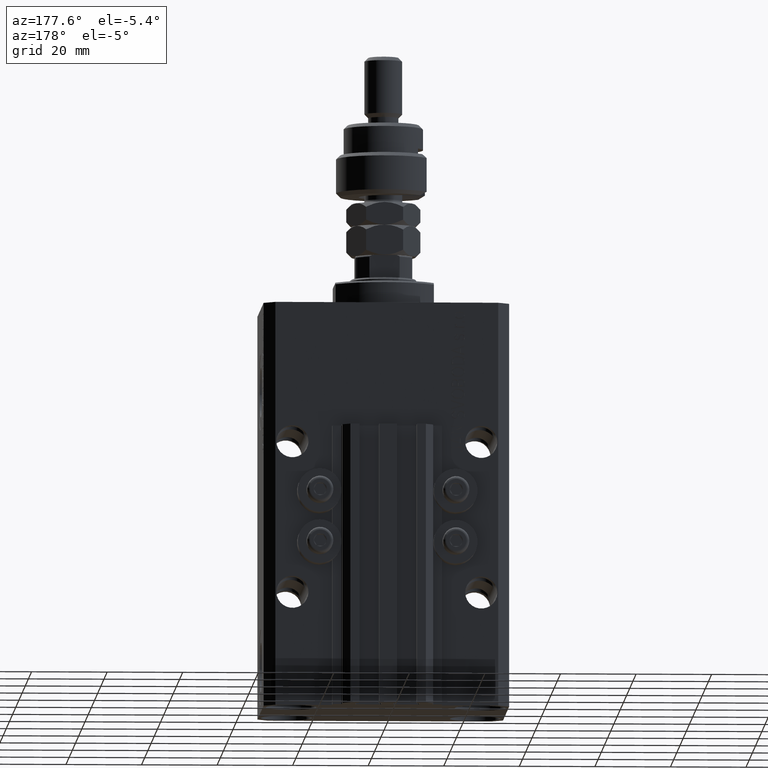
[diagram: clean part render]
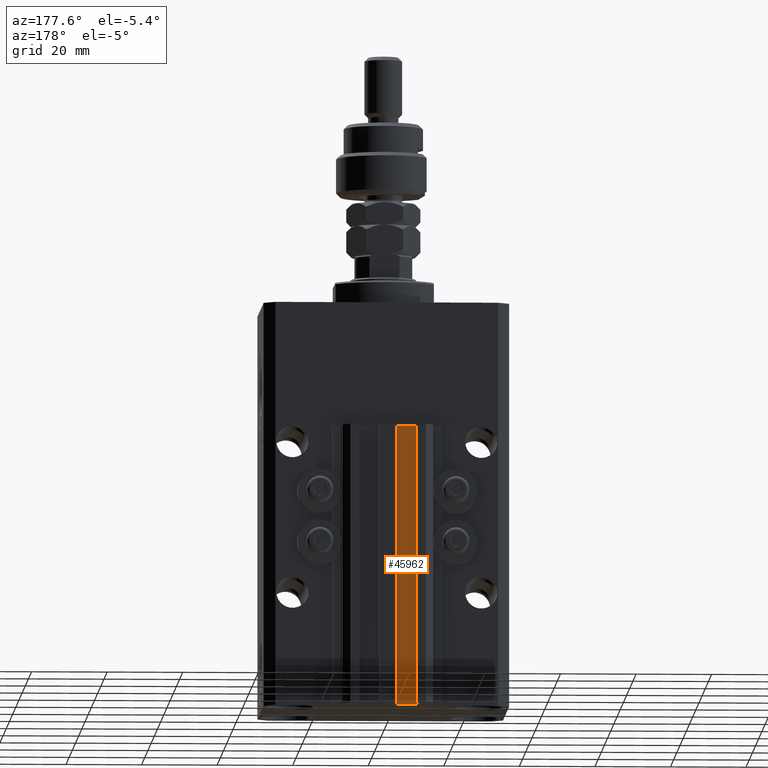
[diagram: same view with one face highlighted and labeled with its STEP entity id]
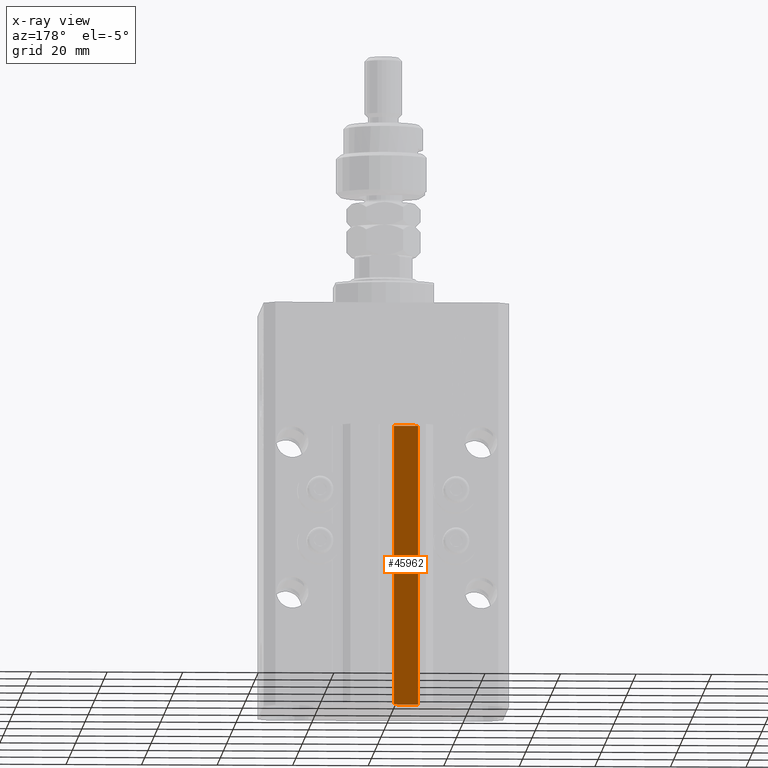
[diagram: x-ray of the same camera — body ghosted, the highlighted face saturated]
A machine part, auxiliary view. The second image highlights one B-rep face of the part: STEP entity #45962.
The next image is the same camera in x-ray: the body ghosted, the highlighted face saturated — about 0% of this face is hidden behind the body in this view.
In plain terms, the highlighted planar face has unit normal (0, 1, 0).
Its self-contained STEP definition (entity closure, byte-faithful):
#427 = EDGE_CURVE ( 'NONE', #20581, #47066, #21463, .T. ) ;
#1610 = DIRECTION ( 'NONE',  ( 0.000000000000000000, 1.000000000000000000, -0.000000000000000000 ) ) ;
#2379 = LINE ( 'NONE', #31006, #15926 ) ;
#2862 = CARTESIAN_POINT ( 'NONE',  ( -8.199999999999999289, 24.49999999999949551, -107.0000000000000000 ) ) ;
#4028 = VERTEX_POINT ( 'NONE', #44834 ) ;
#4633 = CARTESIAN_POINT ( 'NONE',  ( -8.199999999999999289, 24.49999999999949551, -107.0000000000000000 ) ) ;
#5877 = VERTEX_POINT ( 'NONE', #4633 ) ;
#6465 = DIRECTION ( 'NONE',  ( 0.000000000000000000, 0.000000000000000000, 1.000000000000000000 ) ) ;
#11215 = CARTESIAN_POINT ( 'NONE',  ( -1.800000000000000933, 24.49999999999949551, -107.0000000000000000 ) ) ;
#13803 = ORIENTED_EDGE ( 'NONE', *, *, #47001, .T. ) ;
#15032 = VECTOR ( 'NONE', #34506, 1000.000000000000000 ) ;
#15926 = VECTOR ( 'NONE', #45735, 1000.000000000000000 ) ;
#15935 = ORIENTED_EDGE ( 'NONE', *, *, #45773, .F. ) ;
#16589 = DIRECTION ( 'NONE',  ( 0.000000000000000000, 0.000000000000000000, 1.000000000000000000 ) ) ;
#17340 = CARTESIAN_POINT ( 'NONE',  ( -1.800000000000000933, 24.49999999999949551, -107.0000000000000000 ) ) ;
#17421 = ORIENTED_EDGE ( 'NONE', *, *, #41196, .T. ) ;
#19368 = LINE ( 'NONE', #2862, #37936 ) ;
#19542 = LINE ( 'NONE', #35282, #15032 ) ;
#20581 = VERTEX_POINT ( 'NONE', #11215 ) ;
#21011 = EDGE_LOOP ( 'NONE', ( #15935, #28393, #13803, #17421 ) ) ;
#21463 = LINE ( 'NONE', #40567, #22726 ) ;
#22247 = CARTESIAN_POINT ( 'NONE',  ( -1.800000000000000933, 24.49999999999949551, -33.00000000000000000 ) ) ;
#22726 = VECTOR ( 'NONE', #44698, 1000.000000000000000 ) ;
#28393 = ORIENTED_EDGE ( 'NONE', *, *, #427, .F. ) ;
#28717 = FACE_OUTER_BOUND ( 'NONE', #21011, .T. ) ;
#31006 = CARTESIAN_POINT ( 'NONE',  ( -1.800000000000000933, 24.49999999999949551, -107.0000000000000000 ) ) ;
#34506 = DIRECTION ( 'NONE',  ( -1.000000000000000000, 0.000000000000000000, 0.000000000000000000 ) ) ;
#35282 = CARTESIAN_POINT ( 'NONE',  ( -1.800000000000000933, 24.49999999999949551, -33.00000000000000000 ) ) ;
#37936 = VECTOR ( 'NONE', #6465, 1000.000000000000000 ) ;
#40321 = PLANE ( 'NONE',  #48824 ) ;
#40567 = CARTESIAN_POINT ( 'NONE',  ( -1.800000000000000933, 24.49999999999949551, -107.0000000000000000 ) ) ;
#41196 = EDGE_CURVE ( 'NONE', #5877, #4028, #19368, .T. ) ;
#44698 = DIRECTION ( 'NONE',  ( 0.000000000000000000, 0.000000000000000000, 1.000000000000000000 ) ) ;
#44834 = CARTESIAN_POINT ( 'NONE',  ( -8.199999999999999289, 24.49999999999949551, -33.00000000000000000 ) ) ;
#45735 = DIRECTION ( 'NONE',  ( -1.000000000000000000, 0.000000000000000000, 0.000000000000000000 ) ) ;
#45773 = EDGE_CURVE ( 'NONE', #47066, #4028, #19542, .T. ) ;
#45962 = ADVANCED_FACE ( 'NONE', ( #28717 ), #40321, .T. ) ;
#47001 = EDGE_CURVE ( 'NONE', #20581, #5877, #2379, .T. ) ;
#47066 = VERTEX_POINT ( 'NONE', #22247 ) ;
#48824 = AXIS2_PLACEMENT_3D ( 'NONE', #17340, #1610, #16589 ) ;